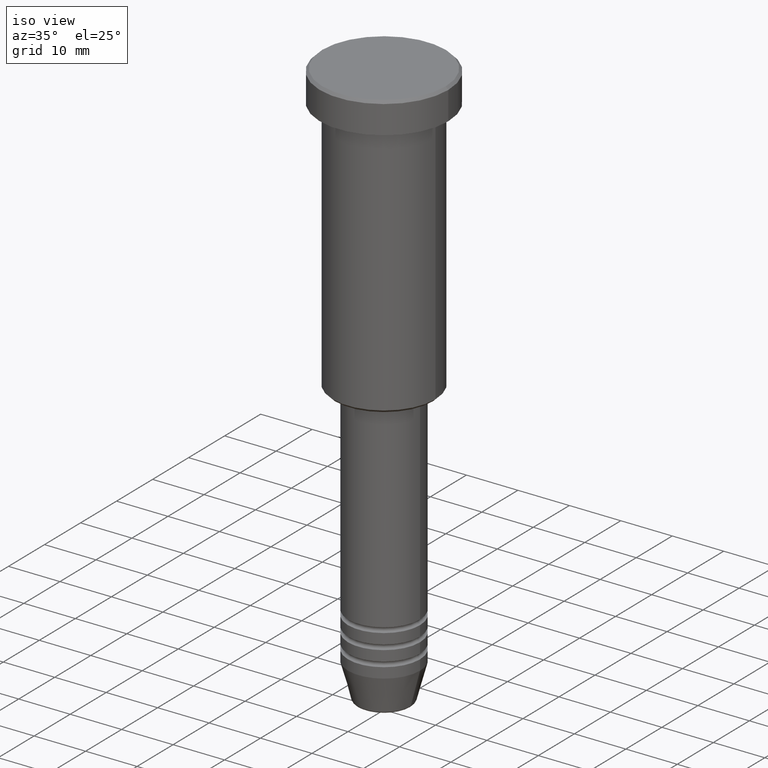
[diagram: clean part render]
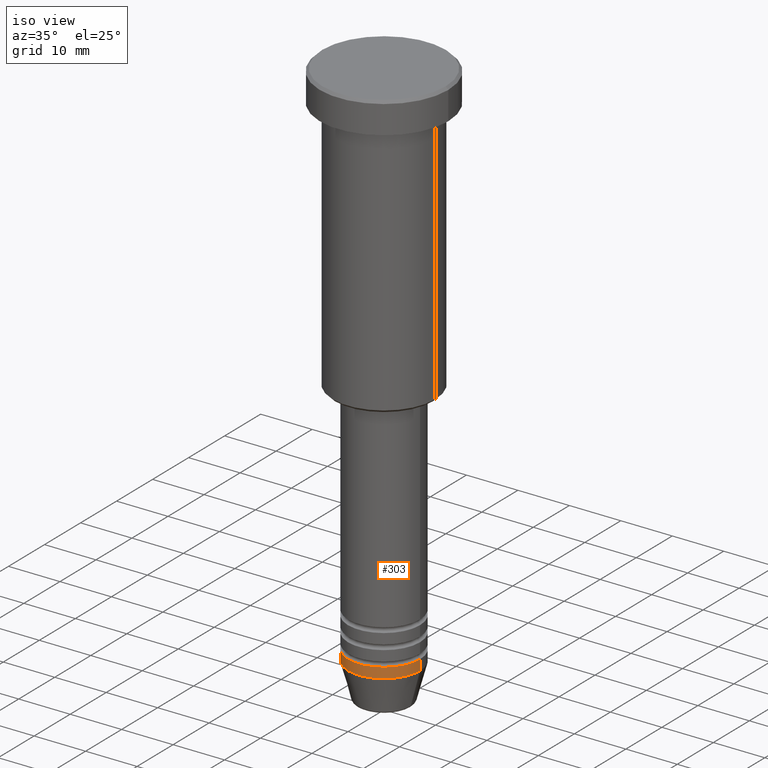
[diagram: same view with one face highlighted and labeled with its STEP entity id]
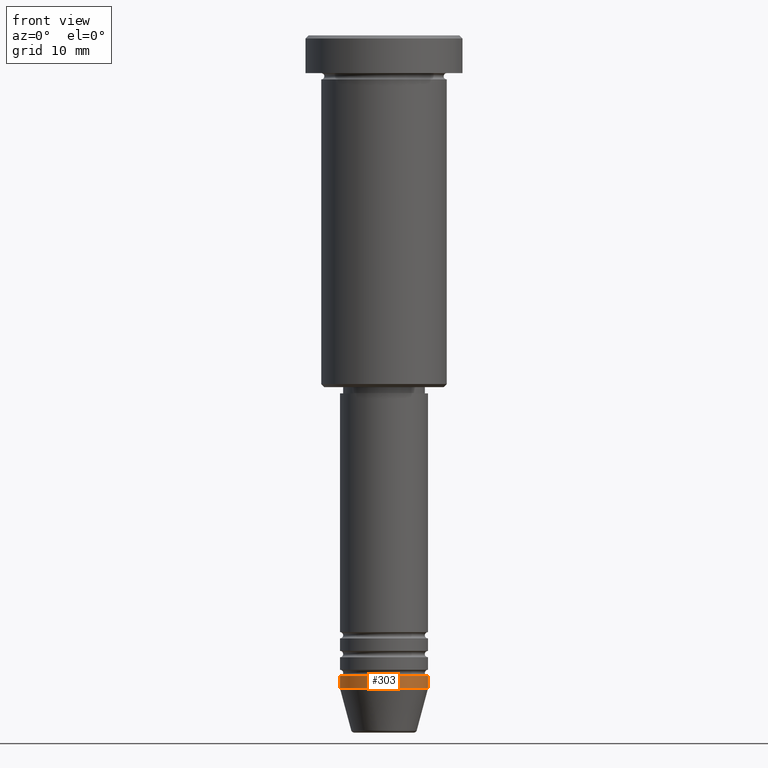
[diagram: same view with one face highlighted and labeled with its STEP entity id]
A machine part, iso view. The second image highlights one B-rep face of the part: STEP entity #303.
A second angle (front view) of the same face is appended — the face is thin or edge-on in the first view.
In plain terms, the highlighted cylindrical surface (partial cylindrical patch) has radius 7 mm, axis along (-0, -0, 1).
Its self-contained STEP definition (entity closure, byte-faithful):
#44 = ORIENTED_EDGE ( 'NONE', *, *, #924, .F. ) ;
#119 = DIRECTION ( 'NONE',  ( -0.000000000000000000, -0.000000000000000000, 1.000000000000000000 ) ) ;
#132 = CYLINDRICAL_SURFACE ( 'NONE', #1091, 7.000000000000000000 ) ;
#181 = VECTOR ( 'NONE', #119, 1000.000000000000000 ) ;
#198 = VECTOR ( 'NONE', #369, 1000.000000000000000 ) ;
#206 = CARTESIAN_POINT ( 'NONE',  ( 0.000000000000000000, 0.000000000000000000, -104.0000000000000142 ) ) ;
#224 = CARTESIAN_POINT ( 'NONE',  ( -7.000000000000000000, 8.572527594031473190E-16, -104.0000000000000142 ) ) ;
#264 = CARTESIAN_POINT ( 'NONE',  ( 0.000000000000000000, 0.000000000000000000, -102.0000000000000142 ) ) ;
#268 = DIRECTION ( 'NONE',  ( 1.000000000000000000, 0.000000000000000000, 0.000000000000000000 ) ) ;
#292 = ORIENTED_EDGE ( 'NONE', *, *, #650, .T. ) ;
#301 = CARTESIAN_POINT ( 'NONE',  ( 7.000000000000000000, 0.000000000000000000, -104.0000000000000142 ) ) ;
#303 = ADVANCED_FACE ( 'NONE', ( #757 ), #132, .T. ) ;
#304 = CARTESIAN_POINT ( 'NONE',  ( -7.000000000000000000, 8.572527594031473190E-16, 0.000000000000000000 ) ) ;
#320 = VERTEX_POINT ( 'NONE', #502 ) ;
#346 = CARTESIAN_POINT ( 'NONE',  ( 7.000000000000000000, 0.000000000000000000, -102.0000000000000142 ) ) ;
#367 = VERTEX_POINT ( 'NONE', #224 ) ;
#369 = DIRECTION ( 'NONE',  ( -0.000000000000000000, -0.000000000000000000, 1.000000000000000000 ) ) ;
#405 = EDGE_CURVE ( 'NONE', #367, #320, #1115, .T. ) ;
#469 = EDGE_LOOP ( 'NONE', ( #726, #1182, #292, #44 ) ) ;
#502 = CARTESIAN_POINT ( 'NONE',  ( -7.000000000000000000, 8.572527594031473190E-16, -102.0000000000000142 ) ) ;
#548 = AXIS2_PLACEMENT_3D ( 'NONE', #264, #1179, #268 ) ;
#650 = EDGE_CURVE ( 'NONE', #1146, #868, #729, .T. ) ;
#656 = CARTESIAN_POINT ( 'NONE',  ( 7.000000000000000000, 0.000000000000000000, 0.000000000000000000 ) ) ;
#726 = ORIENTED_EDGE ( 'NONE', *, *, #405, .F. ) ;
#729 = LINE ( 'NONE', #656, #198 ) ;
#744 = CARTESIAN_POINT ( 'NONE',  ( 0.000000000000000000, 0.000000000000000000, 0.000000000000000000 ) ) ;
#757 = FACE_OUTER_BOUND ( 'NONE', #469, .T. ) ;
#786 = CIRCLE ( 'NONE', #548, 7.000000000000000000 ) ;
#820 = DIRECTION ( 'NONE',  ( -0.000000000000000000, -0.000000000000000000, 1.000000000000000000 ) ) ;
#842 = CIRCLE ( 'NONE', #1012, 7.000000000000000000 ) ;
#850 = DIRECTION ( 'NONE',  ( 1.000000000000000000, 0.000000000000000000, 0.000000000000000000 ) ) ;
#868 = VERTEX_POINT ( 'NONE', #346 ) ;
#906 = DIRECTION ( 'NONE',  ( 1.000000000000000000, 0.000000000000000000, 0.000000000000000000 ) ) ;
#924 = EDGE_CURVE ( 'NONE', #320, #868, #786, .T. ) ;
#1012 = AXIS2_PLACEMENT_3D ( 'NONE', #206, #820, #906 ) ;
#1042 = DIRECTION ( 'NONE',  ( -0.000000000000000000, -0.000000000000000000, 1.000000000000000000 ) ) ;
#1091 = AXIS2_PLACEMENT_3D ( 'NONE', #744, #1042, #850 ) ;
#1115 = LINE ( 'NONE', #304, #181 ) ;
#1130 = EDGE_CURVE ( 'NONE', #367, #1146, #842, .T. ) ;
#1146 = VERTEX_POINT ( 'NONE', #301 ) ;
#1179 = DIRECTION ( 'NONE',  ( -0.000000000000000000, -0.000000000000000000, 1.000000000000000000 ) ) ;
#1182 = ORIENTED_EDGE ( 'NONE', *, *, #1130, .T. ) ;